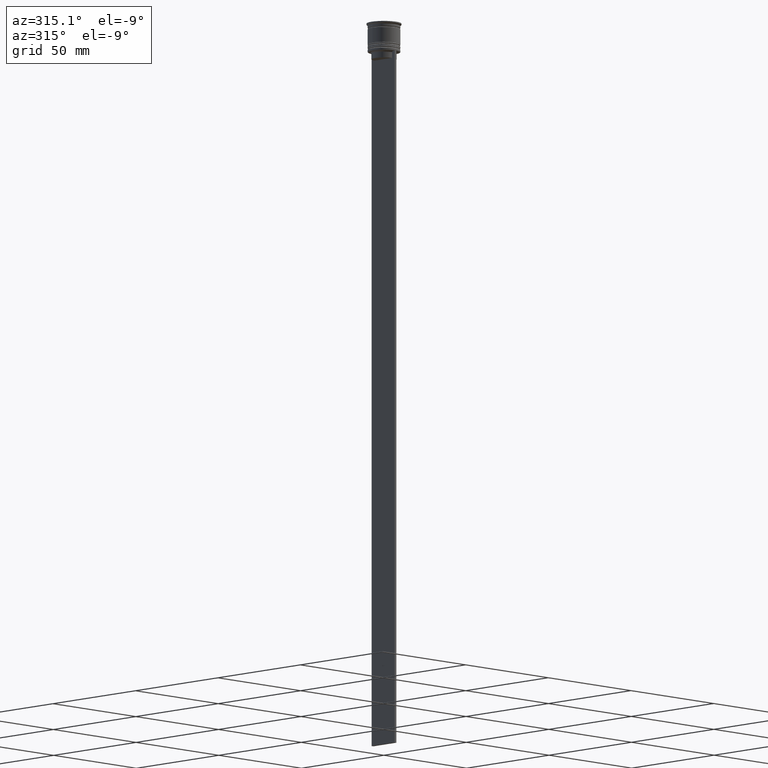
[diagram: clean part render]
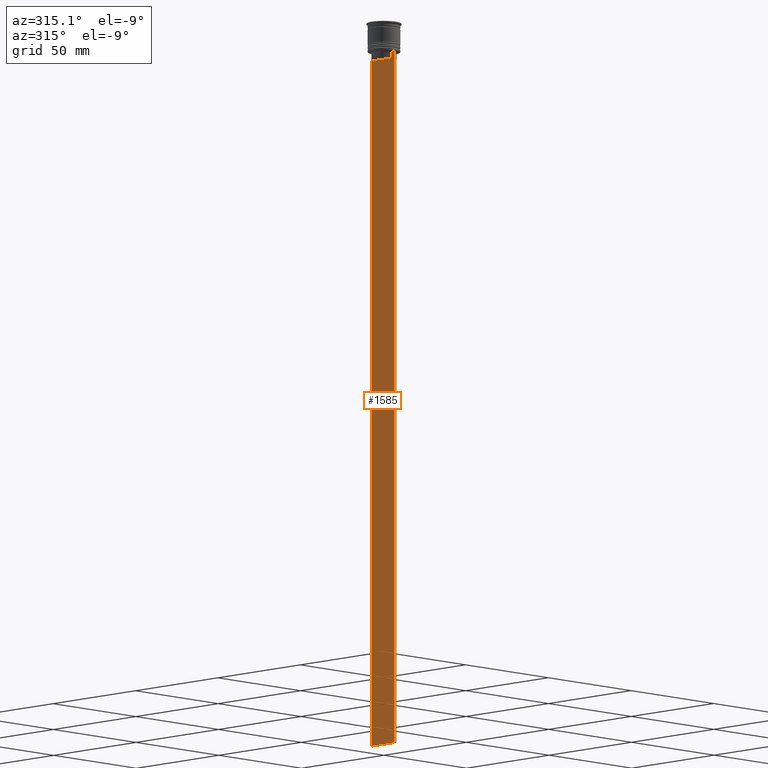
[diagram: same view with one face highlighted and labeled with its STEP entity id]
A machine part, auxiliary view. The second image highlights one B-rep face of the part: STEP entity #1585.
In plain terms, the highlighted planar face has unit normal (-1, 0, 0).
Its self-contained STEP definition (entity closure, byte-faithful):
#27 = B_SPLINE_CURVE_WITH_KNOTS ( 'NONE', 3,
 ( #1967, #263, #250, #439 ),
 .UNSPECIFIED., .F., .F.,
 ( 4, 4 ),
 ( 0.01003009312103698807, 0.01073859663834952557 ),
 .UNSPECIFIED. ) ;
#29 = EDGE_LOOP ( 'NONE', ( #1278, #306, #218, #1827, #982, #106, #884, #2348, #327, #2400, #1032, #1084 ) ) ;
#97 = EDGE_CURVE ( 'NONE', #1597, #1472, #1299, .T. ) ;
#106 = ORIENTED_EDGE ( 'NONE', *, *, #1640, .F. ) ;
#113 = CARTESIAN_POINT ( 'NONE',  ( -0.5000000000000000000, -6.999999999999997335, 1.535668847618198329 ) ) ;
#123 = VERTEX_POINT ( 'NONE', #1119 ) ;
#137 = CARTESIAN_POINT ( 'NONE',  ( -0.5000000000000000000, -6.999999999999997335, -12.50000000000000000 ) ) ;
#151 = VECTOR ( 'NONE', #918, 1000.000000000000000 ) ;
#158 = VERTEX_POINT ( 'NONE', #1027 ) ;
#173 = VERTEX_POINT ( 'NONE', #1803 ) ;
#218 = ORIENTED_EDGE ( 'NONE', *, *, #484, .F. ) ;
#250 = CARTESIAN_POINT ( 'NONE',  ( -0.5000000000000000000, 5.544156989057553275, -12.83336397825725861 ) ) ;
#263 = CARTESIAN_POINT ( 'NONE',  ( -0.5000000000000000000, 5.711478846560141598, -12.66669470477064685 ) ) ;
#299 = LINE ( 'NONE', #2230, #1695 ) ;
#306 = ORIENTED_EDGE ( 'NONE', *, *, #1338, .F. ) ;
#324 = CARTESIAN_POINT ( 'NONE',  ( -0.5000000000000000000, 5.878775382679629402, -12.50000000000000000 ) ) ;
#327 = ORIENTED_EDGE ( 'NONE', *, *, #1369, .F. ) ;
#344 = DIRECTION ( 'NONE',  ( 0.000000000000000000, -1.000000000000000000, 0.000000000000000000 ) ) ;
#347 = DIRECTION ( 'NONE',  ( 0.000000000000000000, -1.000000000000000000, 0.000000000000000000 ) ) ;
#368 = LINE ( 'NONE', #1905, #563 ) ;
#386 = CARTESIAN_POINT ( 'NONE',  ( -0.5000000000000000000, 7.000000000000002665, -312.5000000000000000 ) ) ;
#410 = EDGE_CURVE ( 'NONE', #1472, #2354, #1870, .T. ) ;
#439 = CARTESIAN_POINT ( 'NONE',  ( -0.5000000000000000000, 5.376802023508029826, -13.00000000000000178 ) ) ;
#484 = EDGE_CURVE ( 'NONE', #2124, #158, #368, .T. ) ;
#539 = CARTESIAN_POINT ( 'NONE',  ( -0.5000000000000000000, -6.999999999999997335, -12.50000000000000000 ) ) ;
#558 = CARTESIAN_POINT ( 'NONE',  ( -0.5000000000000000000, -5.878775382679629402, -12.50000000000000000 ) ) ;
#563 = VECTOR ( 'NONE', #1364, 1000.000000000000000 ) ;
#595 = EDGE_CURVE ( 'NONE', #1186, #2069, #27, .T. ) ;
#615 = CARTESIAN_POINT ( 'NONE',  ( -0.5000000000000000000, -5.376802023508029826, -13.00000000000000178 ) ) ;
#649 = DIRECTION ( 'NONE',  ( 0.000000000000000000, -1.000000000000000000, 0.000000000000000000 ) ) ;
#676 = LINE ( 'NONE', #702, #817 ) ;
#694 = AXIS2_PLACEMENT_3D ( 'NONE', #113, #1242, #878 ) ;
#702 = CARTESIAN_POINT ( 'NONE',  ( -0.5000000000000000000, 5.400000000000003908, -15.50000000000000000 ) ) ;
#723 = DIRECTION ( 'NONE',  ( 0.000000000000000000, 0.000000000000000000, -1.000000000000000000 ) ) ;
#740 = CARTESIAN_POINT ( 'NONE',  ( -0.5000000000000000000, -5.544156999454441959, -12.83336396790503642 ) ) ;
#817 = VECTOR ( 'NONE', #649, 1000.000000000000000 ) ;
#861 = VECTOR ( 'NONE', #1102, 1000.000000000000000 ) ;
#878 = DIRECTION ( 'NONE',  ( 0.000000000000000000, 0.000000000000000000, 1.000000000000000000 ) ) ;
#884 = ORIENTED_EDGE ( 'NONE', *, *, #410, .F. ) ;
#891 = LINE ( 'NONE', #1233, #2183 ) ;
#918 = DIRECTION ( 'NONE',  ( 0.000000000000000000, -1.000000000000000000, 0.000000000000000000 ) ) ;
#937 = LINE ( 'NONE', #1908, #1584 ) ;
#982 = ORIENTED_EDGE ( 'NONE', *, *, #1232, .F. ) ;
#1027 = CARTESIAN_POINT ( 'NONE',  ( -0.5000000000000000000, 6.881860213634102053, -12.50000000000000000 ) ) ;
#1032 = ORIENTED_EDGE ( 'NONE', *, *, #1599, .F. ) ;
#1084 = ORIENTED_EDGE ( 'NONE', *, *, #2257, .F. ) ;
#1102 = DIRECTION ( 'NONE',  ( -0.000000000000000000, -0.000000000000000000, 1.000000000000000000 ) ) ;
#1116 = CARTESIAN_POINT ( 'NONE',  ( -0.5000000000000000000, -5.711478856069293286, -12.66669469529570335 ) ) ;
#1119 = CARTESIAN_POINT ( 'NONE',  ( -0.5000000000000000000, 5.376802023508029826, -15.50000000000000000 ) ) ;
#1124 = LINE ( 'NONE', #1153, #861 ) ;
#1129 = LINE ( 'NONE', #539, #1775 ) ;
#1153 = CARTESIAN_POINT ( 'NONE',  ( -0.5000000000000000000, -5.376802023508029826, 0.000000000000000000 ) ) ;
#1186 = VERTEX_POINT ( 'NONE', #324 ) ;
#1232 = EDGE_CURVE ( 'NONE', #1950, #1792, #299, .T. ) ;
#1233 = CARTESIAN_POINT ( 'NONE',  ( -0.5000000000000000000, -6.999999999999997335, 1.535668847618198329 ) ) ;
#1242 = DIRECTION ( 'NONE',  ( -1.000000000000000000, 0.000000000000000000, 0.000000000000000000 ) ) ;
#1256 = CARTESIAN_POINT ( 'NONE',  ( -0.5000000000000000000, -5.878775382679629402, -12.50000000000000000 ) ) ;
#1273 = DIRECTION ( 'NONE',  ( 0.000000000000000000, 1.000000000000000000, 0.000000000000000000 ) ) ;
#1278 = ORIENTED_EDGE ( 'NONE', *, *, #595, .F. ) ;
#1299 = LINE ( 'NONE', #1877, #151 ) ;
#1338 = EDGE_CURVE ( 'NONE', #158, #1186, #1129, .T. ) ;
#1364 = DIRECTION ( 'NONE',  ( 0.000000000000000000, -1.000000000000000000, 0.000000000000000000 ) ) ;
#1369 = EDGE_CURVE ( 'NONE', #1459, #1597, #1987, .T. ) ;
#1419 = CARTESIAN_POINT ( 'NONE',  ( -0.5000000000000000000, -6.999999999999997335, -312.5000000000000000 ) ) ;
#1421 = PLANE ( 'NONE',  #694 ) ;
#1459 = VERTEX_POINT ( 'NONE', #615 ) ;
#1472 = VERTEX_POINT ( 'NONE', #2128 ) ;
#1584 = VECTOR ( 'NONE', #1716, 1000.000000000000000 ) ;
#1585 = ADVANCED_FACE ( 'NONE', ( #2238 ), #1421, .T. ) ;
#1597 = VERTEX_POINT ( 'NONE', #1256 ) ;
#1599 = EDGE_CURVE ( 'NONE', #123, #173, #676, .T. ) ;
#1640 = EDGE_CURVE ( 'NONE', #2354, #1950, #891, .T. ) ;
#1651 = VECTOR ( 'NONE', #344, 1000.000000000000000 ) ;
#1695 = VECTOR ( 'NONE', #1273, 1000.000000000000000 ) ;
#1716 = DIRECTION ( 'NONE',  ( 0.000000000000000000, 0.000000000000000000, -1.000000000000000000 ) ) ;
#1775 = VECTOR ( 'NONE', #347, 1000.000000000000000 ) ;
#1779 = CARTESIAN_POINT ( 'NONE',  ( -0.5000000000000000000, -6.999999999999997335, -12.50000000000000000 ) ) ;
#1785 = VECTOR ( 'NONE', #723, 1000.000000000000000 ) ;
#1792 = VERTEX_POINT ( 'NONE', #386 ) ;
#1803 = CARTESIAN_POINT ( 'NONE',  ( -0.5000000000000000000, -5.376802023508029826, -15.50000000000000000 ) ) ;
#1827 = ORIENTED_EDGE ( 'NONE', *, *, #2216, .T. ) ;
#1870 = LINE ( 'NONE', #137, #1651 ) ;
#1872 = CARTESIAN_POINT ( 'NONE',  ( -0.5000000000000000000, 5.376802023508029826, 0.000000000000000000 ) ) ;
#1877 = CARTESIAN_POINT ( 'NONE',  ( -0.5000000000000000000, -6.999999999999997335, -12.50000000000000000 ) ) ;
#1905 = CARTESIAN_POINT ( 'NONE',  ( -0.5000000000000000000, -6.999999999999997335, -12.50000000000000000 ) ) ;
#1908 = CARTESIAN_POINT ( 'NONE',  ( -0.5000000000000000000, 7.000000000000002665, 1.535668847618198329 ) ) ;
#1950 = VERTEX_POINT ( 'NONE', #1419 ) ;
#1967 = CARTESIAN_POINT ( 'NONE',  ( -0.5000000000000000000, 5.878775382679629402, -12.50000000000000000 ) ) ;
#1987 = B_SPLINE_CURVE_WITH_KNOTS ( 'NONE', 3,
 ( #2283, #740, #1116, #558 ),
 .UNSPECIFIED., .F., .F.,
 ( 4, 4 ),
 ( 0.02539176325380714666, 0.02610162431828674801 ),
 .UNSPECIFIED. ) ;
#2001 = DIRECTION ( 'NONE',  ( 0.000000000000000000, 0.000000000000000000, -1.000000000000000000 ) ) ;
#2062 = LINE ( 'NONE', #1872, #1785 ) ;
#2069 = VERTEX_POINT ( 'NONE', #2225 ) ;
#2124 = VERTEX_POINT ( 'NONE', #2431 ) ;
#2128 = CARTESIAN_POINT ( 'NONE',  ( -0.5000000000000000000, -6.881860213634102053, -12.50000000000000000 ) ) ;
#2183 = VECTOR ( 'NONE', #2001, 1000.000000000000000 ) ;
#2184 = EDGE_CURVE ( 'NONE', #173, #1459, #1124, .T. ) ;
#2216 = EDGE_CURVE ( 'NONE', #2124, #1792, #937, .T. ) ;
#2225 = CARTESIAN_POINT ( 'NONE',  ( -0.5000000000000000000, 5.376802023508029826, -13.00000000000000178 ) ) ;
#2230 = CARTESIAN_POINT ( 'NONE',  ( -0.5000000000000000000, -6.999999999999997335, -312.5000000000000000 ) ) ;
#2238 = FACE_OUTER_BOUND ( 'NONE', #29, .T. ) ;
#2257 = EDGE_CURVE ( 'NONE', #2069, #123, #2062, .T. ) ;
#2283 = CARTESIAN_POINT ( 'NONE',  ( -0.5000000000000000000, -5.376802023508029826, -13.00000000000000178 ) ) ;
#2348 = ORIENTED_EDGE ( 'NONE', *, *, #97, .F. ) ;
#2354 = VERTEX_POINT ( 'NONE', #1779 ) ;
#2400 = ORIENTED_EDGE ( 'NONE', *, *, #2184, .F. ) ;
#2431 = CARTESIAN_POINT ( 'NONE',  ( -0.5000000000000000000, 7.000000000000002665, -12.50000000000000000 ) ) ;